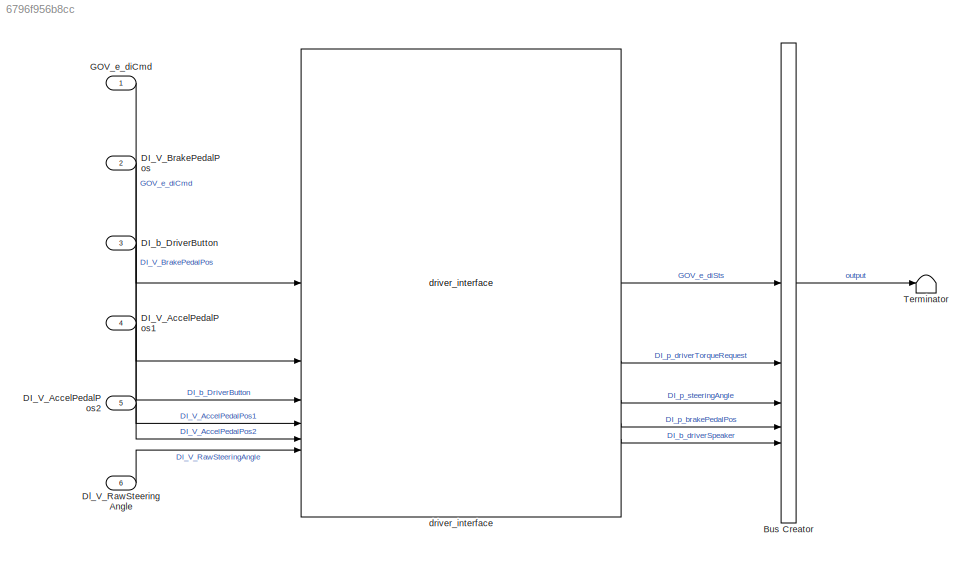
MODEL slx_6796f956b8cc
KIND model
CONFIG AbsTol = auto
CONFIG EnableMultiTasking = off
CONFIG FixedStep = 1e-3
CONFIG MaxStep = auto
CONFIG MinStep = auto
CONFIG RelTol = 1e-3
CONFIG SampleTimeConstraint = Unconstrained
CONFIG SolverName = FixedStepAuto
CONFIG StartTime = 0.0
CONFIG StopTime = 10.0
BLOCK [BusCreator] Bus Creator
  DisplayOption = bar
  InheritFromInputs = on
  Inputs = 5
BLOCK [Inport] DI_V_AccelPedalPos1
  Port = 4
BLOCK [Inport] DI_V_AccelPedalPos2
  Port = 5
BLOCK [Inport] DI_V_BrakePedalPos
  Port = 2
BLOCK [Inport] DI_b_DriverButton
  OutDataTypeStr = boolean
  Port = 3
BLOCK [Inport] Dl_V_RawSteeringAngle
  Port = 6
BLOCK [Inport] GOV_e_diCmd
  Interpolate = off
BLOCK [Terminator] Terminator
BLOCK [Reference] driver_interface  REF=driver_interface_lib/driver_interface  (lib defined in slx_3cb616a1b385)
  SourceBlock = driver_interface_lib/driver_interface
  SourceType = SubSystem
LINE Bus Creator:1 -> Terminator:1
LINE DI_V_AccelPedalPos1:1 -> driver_interface:4
LINE DI_V_AccelPedalPos2:1 -> driver_interface:5
LINE DI_V_BrakePedalPos:1 -> driver_interface:2
LINE DI_b_DriverButton:1 -> driver_interface:3
LINE Dl_V_RawSteeringAngle:1 -> driver_interface:6
LINE GOV_e_diCmd:1 -> driver_interface:1
LINE driver_interface:1 -> Bus Creator:1
LINE driver_interface:2 -> Bus Creator:2
LINE driver_interface:3 -> Bus Creator:3
LINE driver_interface:4 -> Bus Creator:4
LINE driver_interface:5 -> Bus Creator:5
